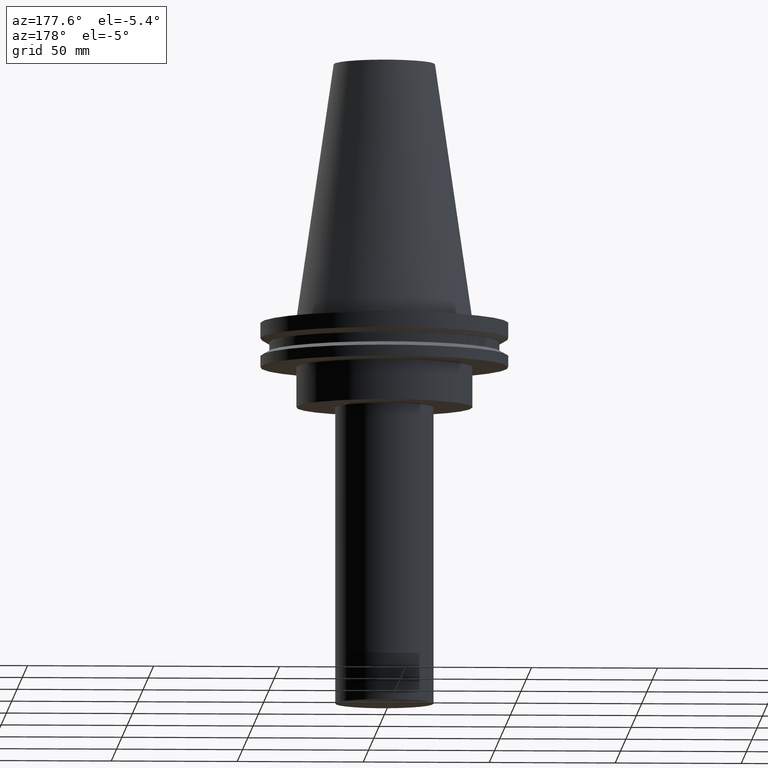
[diagram: clean part render]
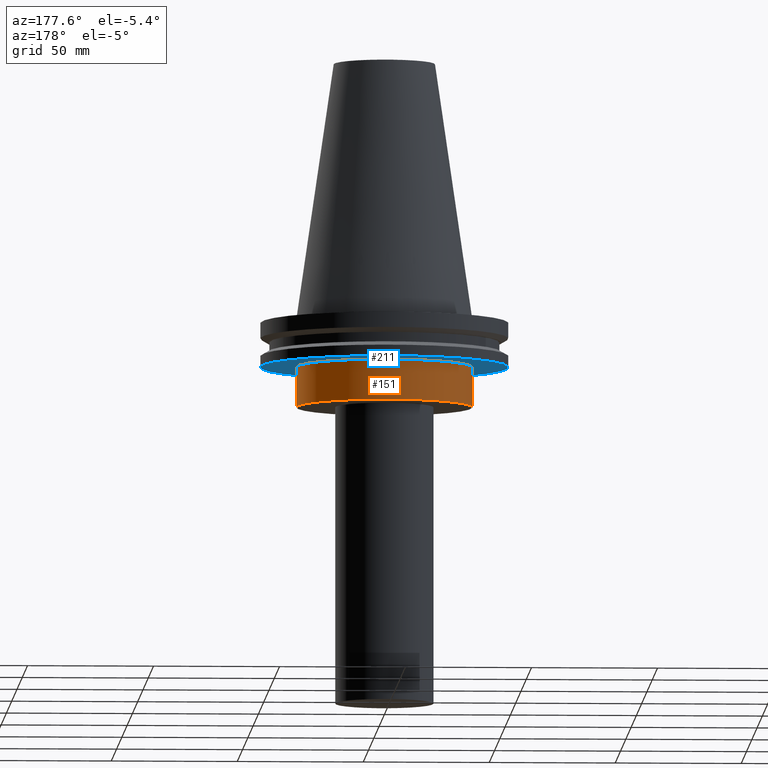
[diagram: same view with the hole feature highlighted: cylindrical wall and planar end face, labeled with their STEP entity ids]
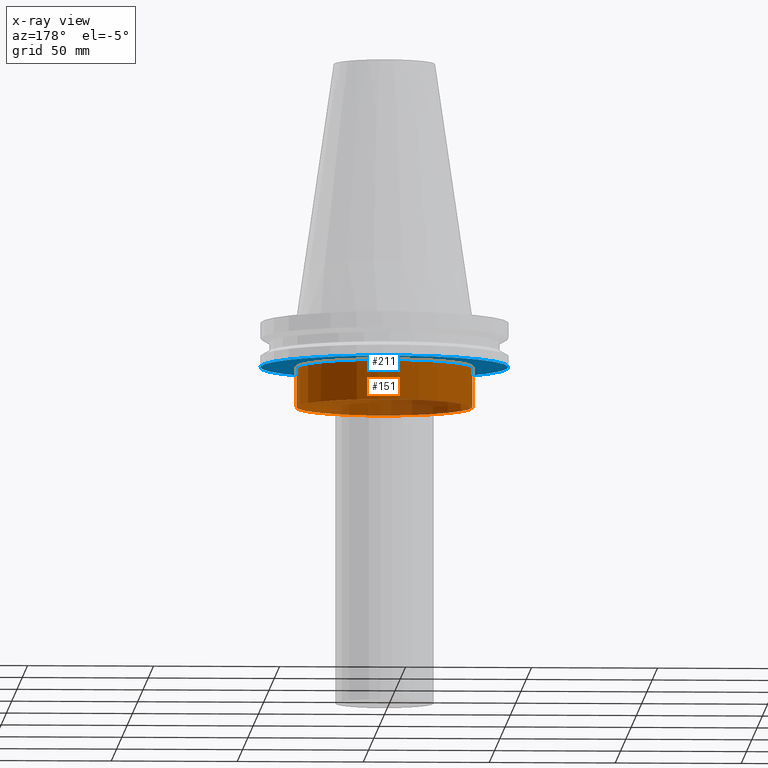
[diagram: x-ray of the same camera — body ghosted, the hole faces saturated]
A machine part, auxiliary view. The highlighted faces form one hole feature of diameter 69.85 mm: the cylindrical wall (entity #151, orange) and its adjacent planar end face (entity #211, blue) — they share a circular edge in the B-rep.
The next image is the same camera in x-ray (body ghosted, the hole faces saturated) — the bore reads through the body.
Wall:
#6 = CARTESIAN_POINT ( 'NONE',  ( 0.000000000000000000, 0.000000000000000000, -35.00000000000000000 ) ) ;
#7 = ORIENTED_EDGE ( 'NONE', *, *, #279, .F. ) ;
#17 = FACE_OUTER_BOUND ( 'NONE', #366, .T. ) ;
#30 = DIRECTION ( 'NONE',  ( 1.000000000000000000, 0.000000000000000000, 0.000000000000000000 ) ) ;
#66 = VERTEX_POINT ( 'NONE', #200 ) ;
#69 = VERTEX_POINT ( 'NONE', #383 ) ;
#79 = CARTESIAN_POINT ( 'NONE',  ( 0.000000000000000000, 0.000000000000000000, 101.5999999999999943 ) ) ;
#85 = CIRCLE ( 'NONE', #288, 34.92499999999999716 ) ;
#96 = EDGE_LOOP ( 'NONE', ( #7 ) ) ;
#118 = AXIS2_PLACEMENT_3D ( 'NONE', #79, #299, #30 ) ;
#121 = DIRECTION ( 'NONE',  ( -0.000000000000000000, -0.000000000000000000, 1.000000000000000000 ) ) ;
#135 = CARTESIAN_POINT ( 'NONE',  ( 0.000000000000000000, 0.000000000000000000, -19.04999999999999716 ) ) ;
#137 = CYLINDRICAL_SURFACE ( 'NONE', #118, 34.92499999999999716 ) ;
#151 = ADVANCED_FACE ( 'NONE', ( #323, #17 ), #137, .T. ) ;
#200 = CARTESIAN_POINT ( 'NONE',  ( 34.92499999999999716, 0.000000000000000000, -19.04999999999999716 ) ) ;
#215 = ORIENTED_EDGE ( 'NONE', *, *, #256, .T. ) ;
#244 = DIRECTION ( 'NONE',  ( 1.000000000000000000, 0.000000000000000000, 0.000000000000000000 ) ) ;
#256 = EDGE_CURVE ( 'NONE', #69, #69, #320, .T. ) ;
#279 = EDGE_CURVE ( 'NONE', #66, #66, #85, .T. ) ;
#288 = AXIS2_PLACEMENT_3D ( 'NONE', #135, #321, #244 ) ;
#299 = DIRECTION ( 'NONE',  ( -0.000000000000000000, -0.000000000000000000, 1.000000000000000000 ) ) ;
#320 = CIRCLE ( 'NONE', #355, 34.92499999999999716 ) ;
#321 = DIRECTION ( 'NONE',  ( -0.000000000000000000, -0.000000000000000000, 1.000000000000000000 ) ) ;
#323 = FACE_OUTER_BOUND ( 'NONE', #96, .T. ) ;
#355 = AXIS2_PLACEMENT_3D ( 'NONE', #6, #121, #379 ) ;
#366 = EDGE_LOOP ( 'NONE', ( #215 ) ) ;
#379 = DIRECTION ( 'NONE',  ( 1.000000000000000000, 0.000000000000000000, 0.000000000000000000 ) ) ;
#383 = CARTESIAN_POINT ( 'NONE',  ( 34.92499999999999716, 0.000000000000000000, -35.00000000000000000 ) ) ;
End face:
#14 = ORIENTED_EDGE ( 'NONE', *, *, #279, .T. ) ;
#25 = CARTESIAN_POINT ( 'NONE',  ( 0.000000000000000000, 49.21499999999998920, -19.04999999999999716 ) ) ;
#54 = DIRECTION ( 'NONE',  ( 0.000000000000000000, -0.000000000000000000, 1.000000000000000000 ) ) ;
#66 = VERTEX_POINT ( 'NONE', #200 ) ;
#85 = CIRCLE ( 'NONE', #288, 34.92499999999999716 ) ;
#107 = CIRCLE ( 'NONE', #225, 49.21499999999998920 ) ;
#111 = FACE_BOUND ( 'NONE', #235, .T. ) ;
#135 = CARTESIAN_POINT ( 'NONE',  ( 0.000000000000000000, 0.000000000000000000, -19.04999999999999716 ) ) ;
#146 = DIRECTION ( 'NONE',  ( 1.000000000000000000, 0.000000000000000000, 0.000000000000000000 ) ) ;
#172 = DIRECTION ( 'NONE',  ( 1.000000000000000000, 0.000000000000000000, 0.000000000000000000 ) ) ;
#198 = VERTEX_POINT ( 'NONE', #234 ) ;
#200 = CARTESIAN_POINT ( 'NONE',  ( 34.92499999999999716, 0.000000000000000000, -19.04999999999999716 ) ) ;
#210 = FACE_OUTER_BOUND ( 'NONE', #310, .T. ) ;
#211 = ADVANCED_FACE ( 'NONE', ( #210, #111 ), #387, .F. ) ;
#225 = AXIS2_PLACEMENT_3D ( 'NONE', #259, #324, #172 ) ;
#234 = CARTESIAN_POINT ( 'NONE',  ( 49.21499999999998920, 0.000000000000000000, -19.04999999999999716 ) ) ;
#235 = EDGE_LOOP ( 'NONE', ( #14 ) ) ;
#244 = DIRECTION ( 'NONE',  ( 1.000000000000000000, 0.000000000000000000, 0.000000000000000000 ) ) ;
#259 = CARTESIAN_POINT ( 'NONE',  ( 0.000000000000000000, 0.000000000000000000, -19.04999999999999716 ) ) ;
#279 = EDGE_CURVE ( 'NONE', #66, #66, #85, .T. ) ;
#286 = ORIENTED_EDGE ( 'NONE', *, *, #327, .F. ) ;
#288 = AXIS2_PLACEMENT_3D ( 'NONE', #135, #321, #244 ) ;
#310 = EDGE_LOOP ( 'NONE', ( #286 ) ) ;
#321 = DIRECTION ( 'NONE',  ( -0.000000000000000000, -0.000000000000000000, 1.000000000000000000 ) ) ;
#324 = DIRECTION ( 'NONE',  ( -0.000000000000000000, -0.000000000000000000, 1.000000000000000000 ) ) ;
#327 = EDGE_CURVE ( 'NONE', #198, #198, #107, .T. ) ;
#372 = AXIS2_PLACEMENT_3D ( 'NONE', #25, #54, #146 ) ;
#387 = PLANE ( 'NONE',  #372 ) ;